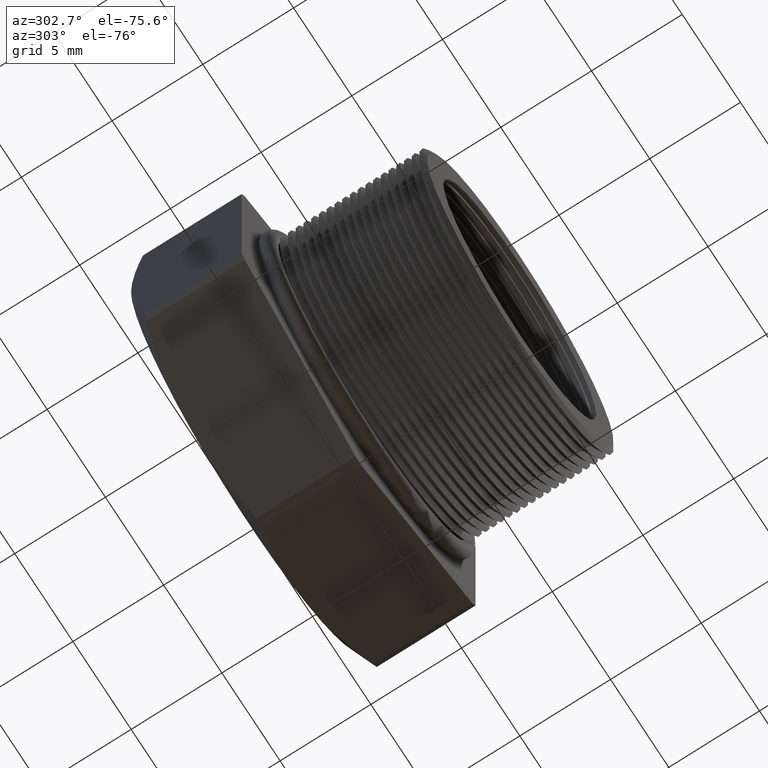
[diagram: clean part render]
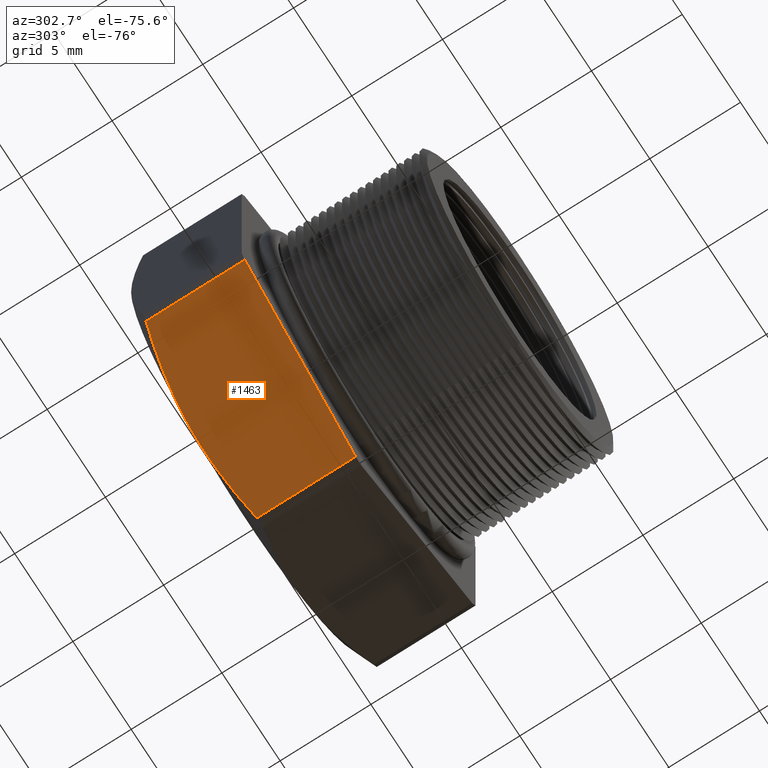
[diagram: same view with one face highlighted and labeled with its STEP entity id]
A machine part, auxiliary view. The second image highlights one B-rep face of the part: STEP entity #1463.
In plain terms, the highlighted planar face has unit normal (-0.5, 0, -0.866).
Its self-contained STEP definition (entity closure, byte-faithful):
#1267 = VERTEX_POINT ( 'NONE', #5018 ) ;
#1274 = VERTEX_POINT ( 'NONE', #5006 ) ;
#1276 = EDGE_CURVE ( 'NONE', #1274, #1297, #5005, .T. ) ;
#1297 = VERTEX_POINT ( 'NONE', #5082 ) ;
#1370 = VERTEX_POINT ( 'NONE', #5196 ) ;
#1372 = EDGE_CURVE ( 'NONE', #1370, #1373, #5195, .T. ) ;
#1373 = VERTEX_POINT ( 'NONE', #5191 ) ;
#1405 = EDGE_LOOP ( 'NONE', ( #1464, #1465, #1467, #1469, #1470 ) ) ;
#1463 = ADVANCED_FACE ( 'NONE', ( #5384 ), #5394, .T. ) ;
#1464 = ORIENTED_EDGE ( 'NONE', *, *, #1372, .F. ) ;
#1465 = ORIENTED_EDGE ( 'NONE', *, *, #1466, .T. ) ;
#1466 = EDGE_CURVE ( 'NONE', #1370, #1267, #5440, .T. ) ;
#1467 = ORIENTED_EDGE ( 'NONE', *, *, #1468, .T. ) ;
#1468 = EDGE_CURVE ( 'NONE', #1267, #1297, #5433, .T. ) ;
#1469 = ORIENTED_EDGE ( 'NONE', *, *, #1276, .F. ) ;
#1470 = ORIENTED_EDGE ( 'NONE', *, *, #1471, .F. ) ;
#1471 = EDGE_CURVE ( 'NONE', #1373, #1274, #5432, .T. ) ;
#5002 = DIRECTION ( 'NONE',  ( 0.0000000000000000000, 1.000000000000000000, 0.0000000000000000000 ) ) ;
#5003 = VECTOR ( 'NONE', #5002, 39.37007874015748100 ) ;
#5004 = CARTESIAN_POINT ( 'NONE',  ( -0.01026000026703705700, 0.0000000000000000000, -0.4501830987437449600 ) ) ;
#5005 = LINE ( 'NONE', #5004, #5003 ) ;
#5006 = CARTESIAN_POINT ( 'NONE',  ( -0.01026000026703719400, 0.1675548905829479500, -0.4501830987437449600 ) ) ;
#5018 = CARTESIAN_POINT ( 'NONE',  ( -0.1975000000000000900, 0.4075548905829479200, -0.3420800344948531900 ) ) ;
#5082 = CARTESIAN_POINT ( 'NONE',  ( -0.01026000026703705900, 0.3817680770869766300, -0.4501830987437449000 ) ) ;
#5191 = CARTESIAN_POINT ( 'NONE',  ( -0.3847399997329630200, 0.1675548905829479500, -0.2339769702459614800 ) ) ;
#5192 = DIRECTION ( 'NONE',  ( -0.0000000000000000000, -1.000000000000000000, -0.0000000000000000000 ) ) ;
#5193 = VECTOR ( 'NONE', #5192, 39.37007874015748100 ) ;
#5194 = CARTESIAN_POINT ( 'NONE',  ( -0.3847399997329630800, 0.0000000000000000000, -0.2339769702459615100 ) ) ;
#5195 = LINE ( 'NONE', #5194, #5193 ) ;
#5196 = CARTESIAN_POINT ( 'NONE',  ( -0.3847399997329630800, 0.3817680770869766900, -0.2339769702459614200 ) ) ;
#5384 = FACE_OUTER_BOUND ( 'NONE', #1405, .T. ) ;
#5391 = DIRECTION ( 'NONE',  ( -0.5000000000000002200, 0.0000000000000000000, -0.8660254037844386000 ) ) ;
#5392 = CARTESIAN_POINT ( 'NONE',  ( -0.3949999999999999600, 0.4075548905829479700, -0.2280533563299020300 ) ) ;
#5393 = AXIS2_PLACEMENT_3D ( 'NONE', #5392, #5391, #5441 ) ;
#5394 = PLANE ( 'NONE',  #5393 ) ;
#5423 = DIRECTION ( 'NONE',  ( 0.8660254037844384900, 0.0000000000000000000, -0.5000000000000001100 ) ) ;
#5424 = VECTOR ( 'NONE', #5423, 39.37007874015748900 ) ;
#5425 = CARTESIAN_POINT ( 'NONE',  ( 0.03874999999999986100, 0.1675548905829479500, -0.4784790355909022700 ) ) ;
#5426 = CARTESIAN_POINT ( 'NONE',  ( -0.01026000026703705900, 0.3817680770869766300, -0.4501830987437449000 ) ) ;
#5427 = CARTESIAN_POINT ( 'NONE',  ( -0.04113558834110792700, 0.3897502881590466700, -0.4323570696577919700 ) ) ;
#5428 = CARTESIAN_POINT ( 'NONE',  ( -0.07225680565382706900, 0.3962764420413619800, -0.4143892264647846000 ) ) ;
#5429 = CARTESIAN_POINT ( 'NONE',  ( -0.1350411223813805000, 0.4052207272773966600, -0.3781406843012450900 ) ) ;
#5430 = CARTESIAN_POINT ( 'NONE',  ( -0.1663280206471310400, 0.4075548905829478600, -0.3600771851654055400 ) ) ;
#5431 = CARTESIAN_POINT ( 'NONE',  ( -0.1975000000000000900, 0.4075548905829479200, -0.3420800344948531900 ) ) ;
#5432 = LINE ( 'NONE', #5425, #5424 ) ;
#5433 = B_SPLINE_CURVE_WITH_KNOTS ( 'NONE', 3,
 ( #5431, #5430, #5429, #5428, #5427, #5426 ),
 .UNSPECIFIED., .F., .F.,
 ( 4, 2, 4 ),
 ( 0.005520192186429568100, 0.008258536476824115300, 0.01099688076721866200 ),
 .UNSPECIFIED. ) ;
#5434 = CARTESIAN_POINT ( 'NONE',  ( -0.1975000000000000900, 0.4075548905829479200, -0.3420800344948531900 ) ) ;
#5435 = CARTESIAN_POINT ( 'NONE',  ( -0.2289182622552071700, 0.4075548905829479700, -0.3239406923243390300 ) ) ;
#5436 = CARTESIAN_POINT ( 'NONE',  ( -0.2602199223343859000, 0.4051865378565923100, -0.3058686704515430300 ) ) ;
#5437 = CARTESIAN_POINT ( 'NONE',  ( -0.3226184986981741600, 0.3962912005447679100, -0.2698428355908605300 ) ) ;
#5438 = CARTESIAN_POINT ( 'NONE',  ( -0.3537166105170323500, 0.3897884989263424300, -0.2518883323609535400 ) ) ;
#5439 = CARTESIAN_POINT ( 'NONE',  ( -0.3847399997329630800, 0.3817680770869766900, -0.2339769702459614200 ) ) ;
#5440 = B_SPLINE_CURVE_WITH_KNOTS ( 'NONE', 3,
 ( #5439, #5438, #5437, #5436, #5435, #5434 ),
 .UNSPECIFIED., .F., .F.,
 ( 4, 2, 4 ),
 ( 2.335025902574512600E-007, 0.002760212844509912700, 0.005520192186429568100 ),
 .UNSPECIFIED. ) ;
#5441 = DIRECTION ( 'NONE',  ( -0.8660254037844384900, 0.0000000000000000000, 0.5000000000000001100 ) ) ;